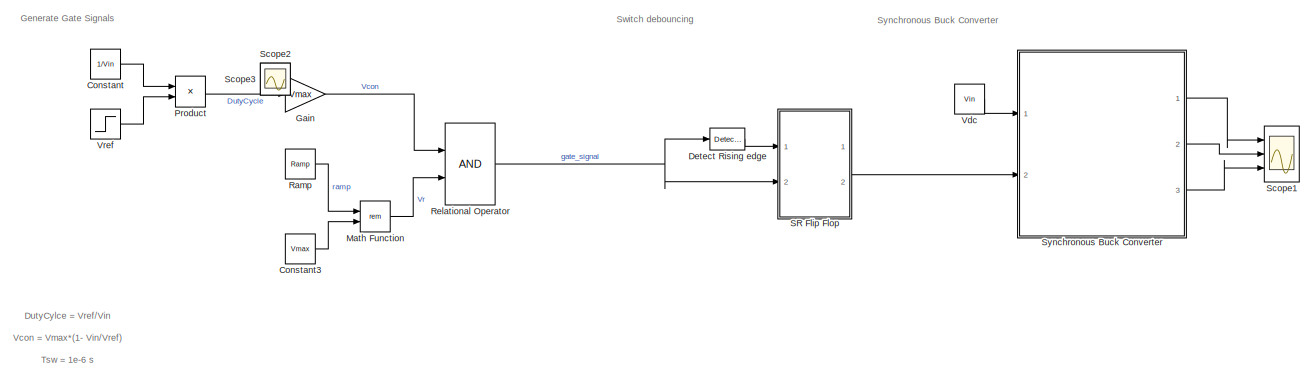
[diagram: root canvas - part 1/2, top center region]
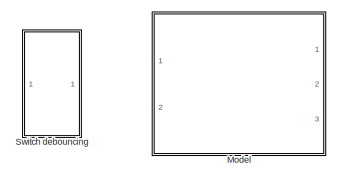
[diagram: root canvas - part 2/2, bottom right region]
MODEL slx_af4533acb3d3
KIND model
CONFIG AbsTol = auto
CONFIG EnableMultiTasking = off
CONFIG FixedStep = Ts
CONFIG InitFcn = run('init_synchronous_buck_boost.m');
CONFIG MaxStep = auto
CONFIG MinStep = auto
CONFIG PostLoadFcn = , if any(exist('dsrtsu_mdlpostloadfcn', 'file') == [2, 3, 6]), try dsrtsu_mdlpostloadfcn('Execute', bdroot); catch fprintf('Error in PostLoadFcn (dsrtsu_mdlpostloadfcn) for model "%s":\n %s\n', bdroot, lasterr); end, end, \n
CONFIG RelTol = 1e-3
CONFIG SampleTimeConstraint = Unconstrained
CONFIG Solver = ode1
CONFIG SolverName = ode1
CONFIG StartTime = 0.0
CONFIG StopTime = 2e-3
BLOCK [Constant] Constant
  Value = 1/Vin
BLOCK [Constant] Constant3
  Value = Vmax
BLOCK [Reference] Detect Rising edge  REF=simulink/Logic and Bit
Operations/Detect
Increase
  Ports = [1, 1]
  SourceBlock = simulink/Logic and Bit\nOperations/Detect\nIncrease
  SourceProductBaseCode = SL
  SourceProductName = Simulink
  SourceType = Detect Increase
BLOCK [Gain] Gain
  Gain = Vmax
  OutDataTypeStr = Inherit: Inherit via internal rule
  ParamDataTypeStr = Inherit: Inherit via internal rule
  SaturateOnIntegerOverflow = off
BLOCK [Math] Math Function
  Operator = rem
  Ports = [2, 1]
BLOCK [ModelReference] Model
  Commented = on
  ModelNameDialog = synchronous_buck_mref.slx
  ModelReferenceVersion = 1.2
  Ports = [2, 3]
  Variant = off
BLOCK [Product] Product
  InputSameDT = off
  OutDataTypeStr = Inherit: Inherit via internal rule
  Ports = [2, 1]
  RndMeth = Floor
  SaturateOnIntegerOverflow = off
BLOCK [Reference] Ramp  REF=simulink/Sources/Ramp
  Ports = [0, 1]
  SourceBlock = simulink/Sources/Ramp
  SourceProductBaseCode = SL
  SourceProductName = Simulink
  SourceType = Ramp
BLOCK [RelationalOperator] Relational Operator
  InputSameDT = off
  OutDataTypeStr = boolean
  Ports = [2, 1]
  RndMeth = Simplest
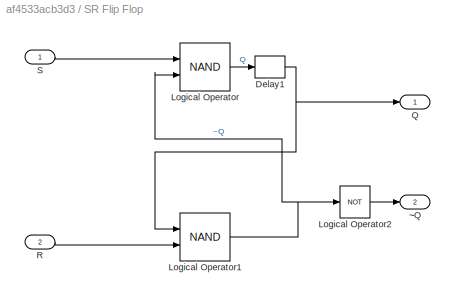
BLOCK [SubSystem] SR Flip Flop
  Ports = [2, 2]
  RequestExecContextInheritance = off
  Variant = off
BLOCK [Delay] SR Flip Flop/Delay1
  DelayLength = 1
  InputPortMap = u0
  Ports = [1, 1]
BLOCK [Logic] SR Flip Flop/Logical Operator
  AllPortsSameDT = off
  IconShape = distinctive
  Operator = NAND
  OutDataTypeStr = boolean
  Ports = [2, 1]
BLOCK [Logic] SR Flip Flop/Logical Operator1
  AllPortsSameDT = off
  IconShape = distinctive
  Operator = NAND
  OutDataTypeStr = boolean
  Ports = [2, 1]
BLOCK [Logic] SR Flip Flop/Logical Operator2
  AllPortsSameDT = off
  IconShape = distinctive
  Operator = NOT
  OutDataTypeStr = boolean
  Ports = [1, 1]
BLOCK [Outport] SR Flip Flop/Q
  IconDisplay = Port number
BLOCK [Inport] SR Flip Flop/R
  IconDisplay = Port number
  Port = 2
BLOCK [Inport] SR Flip Flop/S
  IconDisplay = Port number
BLOCK [Outport] SR Flip Flop/~Q
  IconDisplay = Port number
  Port = 2
BLOCK [Scope] Scope1
  NumInputPorts = 3
  Ports = [3]
  ScopeSpecificationString = Simulink.scopes.TimeScopeBlockCfg('CurrentConfiguration', extmgr.ConfigurationSet(extmgr.Configuration('Core','General UI',true),extmgr.Configuration('Core','Source UI',true),extmgr.Configuration('Sources','WiredSimulink',true,'DataLoggingVariableName','ScopeData1'),extmgr.Configuration('Visuals','Time Domain',true,'SerializedDisplays',{struct('MinYLimReal','-7.94726','MaxYLimReal','17.62087','YLa...<+1537ch>
BLOCK [Scope] Scope2
  IOType = viewer
  NumInputPorts = 1
  Ports = []
  ScopeSpecificationString = Simulink.scopes.TimeScopeBlockCfg('CurrentConfiguration', extmgr.ConfigurationSet(extmgr.Configuration('Core','General UI',true),extmgr.Configuration('Core','Source UI',true),extmgr.Configuration('Sources','WiredSimulink',true,'DataLoggingVariableName','ScopeData1'),extmgr.Configuration('Visuals','Time Domain',true,'SerializedDisplays',{struct('MinYLimReal','-0.125','MaxYLimReal','1.125','YLabelRe...<+1482ch>
BLOCK [Scope] Scope3
  IOType = viewer
  NumInputPorts = 1
  Ports = []
  ScopeSpecificationString = Simulink.scopes.TimeScopeBlockCfg('CurrentConfiguration', extmgr.ConfigurationSet(extmgr.Configuration('Core','General UI',true),extmgr.Configuration('Core','Source UI',true),extmgr.Configuration('Sources','WiredSimulink',true,'DataLoggingVariableName','ScopeData2'),extmgr.Configuration('Visuals','Time Domain',true,'SerializedDisplays',{struct('MinYLimReal','-5.75','MaxYLimReal','51.75','YLabelRea...<+1771ch>
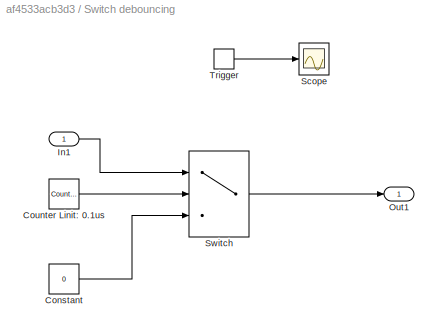
BLOCK [SubSystem] Switch debouncing
  Commented = on
  Ports = [1, 1, 0, 1]
  RequestExecContextInheritance = off
  TreatAsAtomicUnit = on
  Variant = off
BLOCK [Constant] Switch debouncing/Constant
  Value = 0
BLOCK [Reference] Switch debouncing/Counter Linit: 0.1us  REF=simulink/Sources/Counter
Limited
  Ports = [0, 1]
  SourceBlock = simulink/Sources/Counter\nLimited
  SourceProductBaseCode = SL
  SourceProductName = Simulink
  SourceType = Counter Limited
BLOCK [Inport] Switch debouncing/In1
  IconDisplay = Port number
BLOCK [Outport] Switch debouncing/Out1
  IconDisplay = Port number
BLOCK [Scope] Switch debouncing/Scope
  NumInputPorts = 1
  Ports = [1]
  ScopeSpecificationString = Simulink.scopes.TimeScopeBlockCfg('CurrentConfiguration', extmgr.ConfigurationSet(extmgr.Configuration('Core','General UI',true),extmgr.Configuration('Core','Source UI',true),extmgr.Configuration('Sources','WiredSimulink',true,'DataLoggingVariableName','ScopeData4'),extmgr.Configuration('Visuals','Time Domain',true,'SerializedDisplays',{struct('MinYLimReal','0.9','MaxYLimReal','1.1','YLabelReal','...<+1357ch>
BLOCK [Switch] Switch debouncing/Switch
  InputSameDT = off
  SaturateOnIntegerOverflow = off
  Threshold = (0.45e-6/Ts) + 1
BLOCK [TriggerPort] Switch debouncing/Trigger
  PortDimensions = 1
  Ports = [0, 1]
  ShowOutputPort = on
  StatesWhenEnabling = held
  VariantControl = Variant
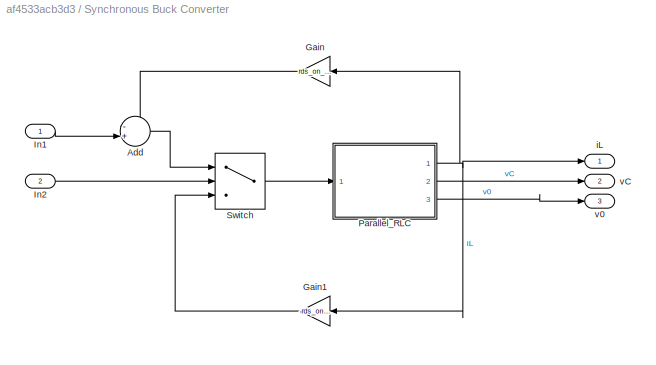
BLOCK [SubSystem] Synchronous Buck Converter
  Ports = [2, 3]
  RequestExecContextInheritance = off
  Variant = off
BLOCK [Sum] Synchronous Buck Converter/Add
  IconShape = round
  InputSameDT = off
  Inputs = -+|
  OutDataTypeStr = Inherit: Inherit via internal rule
  Ports = [2, 1]
  SaturateOnIntegerOverflow = off
BLOCK [Gain] Synchronous Buck Converter/Gain
  Gain = rds_on_sw1
  OutDataTypeStr = Inherit: Inherit via internal rule
  ParamDataTypeStr = Inherit: Inherit via internal rule
  SaturateOnIntegerOverflow = off
BLOCK [Gain] Synchronous Buck Converter/Gain1
  Gain = -rds_on_sw2
  OutDataTypeStr = Inherit: Inherit via internal rule
  ParamDataTypeStr = Inherit: Inherit via internal rule
  SaturateOnIntegerOverflow = off
BLOCK [Inport] Synchronous Buck Converter/In1
  IconDisplay = Port number
BLOCK [Inport] Synchronous Buck Converter/In2
  IconDisplay = Port number
  Port = 2
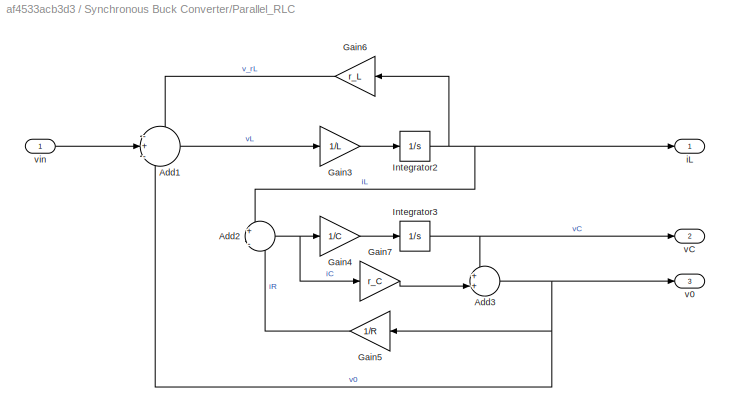
BLOCK [SubSystem] Synchronous Buck Converter/Parallel_RLC
  Ports = [1, 3]
  RequestExecContextInheritance = off
  Variant = off
BLOCK [Sum] Synchronous Buck Converter/Parallel_RLC/Add1
  IconShape = round
  InputSameDT = off
  Inputs = -+-
  OutDataTypeStr = Inherit: Inherit via internal rule
  Ports = [3, 1]
  SaturateOnIntegerOverflow = off
BLOCK [Sum] Synchronous Buck Converter/Parallel_RLC/Add2
  IconShape = round
  InputSameDT = off
  Inputs = +|-
  OutDataTypeStr = Inherit: Inherit via internal rule
  Ports = [2, 1]
  SaturateOnIntegerOverflow = off
BLOCK [Sum] Synchronous Buck Converter/Parallel_RLC/Add3
  IconShape = round
  InputSameDT = off
  Inputs = ++|
  OutDataTypeStr = Inherit: Inherit via internal rule
  Ports = [2, 1]
  SaturateOnIntegerOverflow = off
BLOCK [Gain] Synchronous Buck Converter/Parallel_RLC/Gain3
  Gain = 1/L
  OutDataTypeStr = Inherit: Inherit via internal rule
  ParamDataTypeStr = Inherit: Inherit via internal rule
  SaturateOnIntegerOverflow = off
BLOCK [Gain] Synchronous Buck Converter/Parallel_RLC/Gain4
  Gain = 1/C
  OutDataTypeStr = Inherit: Inherit via internal rule
  ParamDataTypeStr = Inherit: Inherit via internal rule
  SaturateOnIntegerOverflow = off
BLOCK [Gain] Synchronous Buck Converter/Parallel_RLC/Gain5
  Gain = 1/R
  OutDataTypeStr = Inherit: Inherit via internal rule
  ParamDataTypeStr = Inherit: Inherit via internal rule
  SaturateOnIntegerOverflow = off
BLOCK [Gain] Synchronous Buck Converter/Parallel_RLC/Gain6
  Gain = r_L
  OutDataTypeStr = Inherit: Inherit via internal rule
  ParamDataTypeStr = Inherit: Inherit via internal rule
  SaturateOnIntegerOverflow = off
BLOCK [Gain] Synchronous Buck Converter/Parallel_RLC/Gain7
  Gain = r_C
  OutDataTypeStr = Inherit: Inherit via internal rule
  ParamDataTypeStr = Inherit: Inherit via internal rule
  SaturateOnIntegerOverflow = off
BLOCK [Integrator] Synchronous Buck Converter/Parallel_RLC/Integrator2
  InitialCondition = i_L_init
  Ports = [1, 1]
BLOCK [Integrator] Synchronous Buck Converter/Parallel_RLC/Integrator3
  InitialCondition = v_C_init
  Ports = [1, 1]
BLOCK [Outport] Synchronous Buck Converter/Parallel_RLC/iL
  IconDisplay = Port number
BLOCK [Outport] Synchronous Buck Converter/Parallel_RLC/v0
  IconDisplay = Port number
  Port = 3
BLOCK [Outport] Synchronous Buck Converter/Parallel_RLC/vC
  IconDisplay = Port number
  Port = 2
BLOCK [Inport] Synchronous Buck Converter/Parallel_RLC/vin
  IconDisplay = Port number
BLOCK [Switch] Synchronous Buck Converter/Switch
  Criteria = u2 > Threshold
  InputSameDT = off
  SaturateOnIntegerOverflow = off
  Threshold = 0.5
BLOCK [Outport] Synchronous Buck Converter/iL
  IconDisplay = Port number
BLOCK [Outport] Synchronous Buck Converter/v0
  IconDisplay = Port number
  Port = 3
BLOCK [Outport] Synchronous Buck Converter/vC
  IconDisplay = Port number
  Port = 2
BLOCK [Constant] Vdc
  Value = Vin
BLOCK [Step] Vref
  After = Vref-1
  Before = Vref
  Time = 1.05e-3
ANNOTATION (root): DutyCylce = Vref/Vin Vcon = Vmax*(1- Vin/Vref) Tsw = 1e-6 s
ANNOTATION (root): Generate Gate Signals
ANNOTATION (root): Switch debouncing
ANNOTATION (root): Synchronous Buck Converter
LINE Constant3:1 -> Math Function:2
LINE Constant:1 -> Product:1
LINE Detect Rising edge:1 -> SR Flip Flop:1
LINE Gain:1 -> Relational Operator:1
LINE Math Function:1 -> Relational Operator:2
LINE Product:1 -> Gain:1
LINE Ramp:1 -> Math Function:1
NET Relational Operator:1 -> Detect Rising edge:1, SR Flip Flop:2
NET SR Flip Flop/Delay1:1 -> SR Flip Flop/Logical Operator1:1, SR Flip Flop/Q:1
NET SR Flip Flop/Logical Operator1:1 -> SR Flip Flop/Logical Operator2:1, SR Flip Flop/Logical Operator:2
LINE SR Flip Flop/Logical Operator2:1 -> SR Flip Flop/~Q:1
LINE SR Flip Flop/Logical Operator:1 -> SR Flip Flop/Delay1:1
LINE SR Flip Flop/R:1 -> SR Flip Flop/Logical Operator1:2
LINE SR Flip Flop/S:1 -> SR Flip Flop/Logical Operator:1
LINE SR Flip Flop:2 -> Synchronous Buck Converter:2
LINE Switch debouncing/Constant:1 -> Switch debouncing/Switch:3
LINE Switch debouncing/Counter Linit: 0.1us:1 -> Switch debouncing/Switch:2
LINE Switch debouncing/In1:1 -> Switch debouncing/Switch:1
LINE Switch debouncing/Switch:1 -> Switch debouncing/Out1:1
LINE Switch debouncing/Trigger:1 -> Switch debouncing/Scope:1
LINE Synchronous Buck Converter/Add:1 -> Synchronous Buck Converter/Switch:1
LINE Synchronous Buck Converter/Gain1:1 -> Synchronous Buck Converter/Switch:3
LINE Synchronous Buck Converter/Gain:1 -> Synchronous Buck Converter/Add:1
LINE Synchronous Buck Converter/In1:1 -> Synchronous Buck Converter/Add:2
LINE Synchronous Buck Converter/In2:1 -> Synchronous Buck Converter/Switch:2
LINE Synchronous Buck Converter/Parallel_RLC/Add1:1 -> Synchronous Buck Converter/Parallel_RLC/Gain3:1
NET Synchronous Buck Converter/Parallel_RLC/Add2:1 -> Synchronous Buck Converter/Parallel_RLC/Gain4:1, Synchronous Buck Converter/Parallel_RLC/Gain7:1
NET Synchronous Buck Converter/Parallel_RLC/Add3:1 -> Synchronous Buck Converter/Parallel_RLC/Add1:3, Synchronous Buck Converter/Parallel_RLC/Gain5:1, Synchronous Buck Converter/Parallel_RLC/v0:1
LINE Synchronous Buck Converter/Parallel_RLC/Gain3:1 -> Synchronous Buck Converter/Parallel_RLC/Integrator2:1
LINE Synchronous Buck Converter/Parallel_RLC/Gain4:1 -> Synchronous Buck Converter/Parallel_RLC/Integrator3:1
LINE Synchronous Buck Converter/Parallel_RLC/Gain5:1 -> Synchronous Buck Converter/Parallel_RLC/Add2:2
LINE Synchronous Buck Converter/Parallel_RLC/Gain6:1 -> Synchronous Buck Converter/Parallel_RLC/Add1:1
LINE Synchronous Buck Converter/Parallel_RLC/Gain7:1 -> Synchronous Buck Converter/Parallel_RLC/Add3:2
NET Synchronous Buck Converter/Parallel_RLC/Integrator2:1 -> Synchronous Buck Converter/Parallel_RLC/Add2:1, Synchronous Buck Converter/Parallel_RLC/Gain6:1, Synchronous Buck Converter/Parallel_RLC/iL:1
NET Synchronous Buck Converter/Parallel_RLC/Integrator3:1 -> Synchronous Buck Converter/Parallel_RLC/Add3:1, Synchronous Buck Converter/Parallel_RLC/vC:1
LINE Synchronous Buck Converter/Parallel_RLC/vin:1 -> Synchronous Buck Converter/Parallel_RLC/Add1:2
NET Synchronous Buck Converter/Parallel_RLC:1 -> Synchronous Buck Converter/Gain1:1, Synchronous Buck Converter/Gain:1, Synchronous Buck Converter/iL:1
LINE Synchronous Buck Converter/Parallel_RLC:2 -> Synchronous Buck Converter/vC:1
LINE Synchronous Buck Converter/Parallel_RLC:3 -> Synchronous Buck Converter/v0:1
LINE Synchronous Buck Converter/Switch:1 -> Synchronous Buck Converter/Parallel_RLC:1
LINE Synchronous Buck Converter:1 -> Scope1:1
LINE Synchronous Buck Converter:2 -> Scope1:2
LINE Synchronous Buck Converter:3 -> Scope1:3
LINE Vdc:1 -> Synchronous Buck Converter:1
LINE Vref:1 -> Product:2
note: NET lines group one-source signal fan-out (src -> all destinations, sorted); 1:1 wires keep LINE
